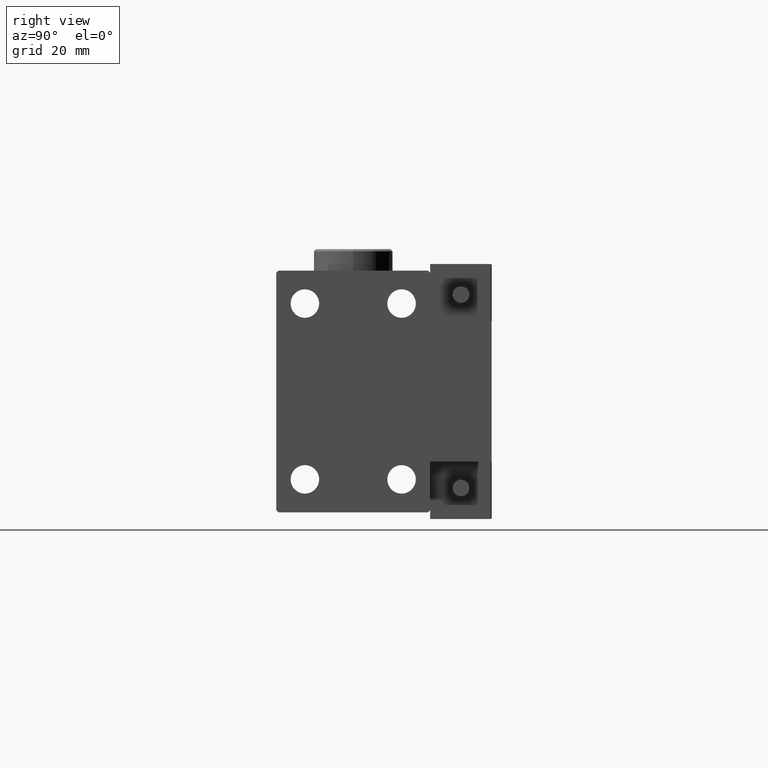
[diagram: clean part render]
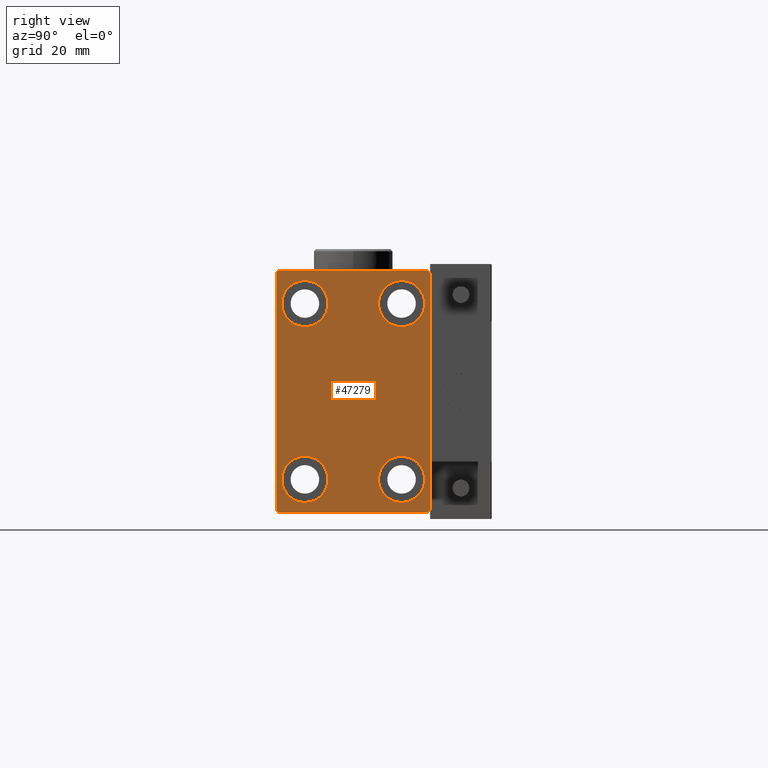
[diagram: same view with one face highlighted and labeled with its STEP entity id]
A machine part, right view. The second image highlights one B-rep face of the part: STEP entity #47279.
In plain terms, the highlighted planar face has unit normal (1, 0, 0).
Its self-contained STEP definition (entity closure, byte-faithful):
#1250 = VECTOR ( 'NONE', #51396, 1000.000000000000000 ) ;
#1400 = AXIS2_PLACEMENT_3D ( 'NONE', #21234, #33471, #48862 ) ;
#1563 = CARTESIAN_POINT ( 'NONE',  ( 76.00000000000000000, -17.50000000000000000, -27.50000000000000355 ) ) ;
#1680 = LINE ( 'NONE', #44450, #11740 ) ;
#1924 = ORIENTED_EDGE ( 'NONE', *, *, #20626, .T. ) ;
#2539 = LINE ( 'NONE', #10387, #17497 ) ;
#3242 = DIRECTION ( 'NONE',  ( 0.000000000000000000, 0.000000000000000000, -1.000000000000000000 ) ) ;
#3250 = DIRECTION ( 'NONE',  ( -0.000000000000000000, 0.7071067811865474617, 0.7071067811865474617 ) ) ;
#3505 = ORIENTED_EDGE ( 'NONE', *, *, #49502, .T. ) ;
#3665 = CARTESIAN_POINT ( 'NONE',  ( 76.00000000000000000, -22.25000000000024869, -22.24999999999963407 ) ) ;
#4926 = CARTESIAN_POINT ( 'NONE',  ( 76.00000000000000000, 11.00000000000000355, 25.25000000000000000 ) ) ;
#5257 = VERTEX_POINT ( 'NONE', #38629 ) ;
#6004 = CIRCLE ( 'NONE', #35160, 5.250000000000000888 ) ;
#6150 = DIRECTION ( 'NONE',  ( 0.000000000000000000, 0.000000000000000000, 1.000000000000000000 ) ) ;
#6251 = DIRECTION ( 'NONE',  ( 0.000000000000000000, 1.000000000000000000, 0.000000000000000000 ) ) ;
#6395 = VECTOR ( 'NONE', #41523, 1000.000000000000000 ) ;
#6415 = LINE ( 'NONE', #42380, #16752 ) ;
#6847 = DIRECTION ( 'NONE',  ( -1.000000000000000000, -0.000000000000000000, -0.000000000000000000 ) ) ;
#6942 = CIRCLE ( 'NONE', #13637, 5.250000000000000888 ) ;
#7661 = CARTESIAN_POINT ( 'NONE',  ( 76.00000000000000000, -11.00000000000000355, -14.75000000000000000 ) ) ;
#8195 = ORIENTED_EDGE ( 'NONE', *, *, #23574, .T. ) ;
#8262 = LINE ( 'NONE', #32274, #34756 ) ;
#8416 = DIRECTION ( 'NONE',  ( 0.000000000000000000, 0.000000000000000000, 1.000000000000000000 ) ) ;
#8664 = VERTEX_POINT ( 'NONE', #46753 ) ;
#8855 = CARTESIAN_POINT ( 'NONE',  ( 76.00000000000000000, -16.99999999999998579, 27.49999999999999645 ) ) ;
#8981 = EDGE_LOOP ( 'NONE', ( #34984, #8195 ) ) ;
#10333 = CARTESIAN_POINT ( 'NONE',  ( 76.00000000000000000, -11.00000000000000355, 20.00000000000000000 ) ) ;
#10387 = CARTESIAN_POINT ( 'NONE',  ( 76.00000000000000000, -17.50000000000000000, 27.49999999999999645 ) ) ;
#11507 = ORIENTED_EDGE ( 'NONE', *, *, #23798, .T. ) ;
#11740 = VECTOR ( 'NONE', #40537, 1000.000000000000114 ) ;
#12090 = VERTEX_POINT ( 'NONE', #36829 ) ;
#12483 = DIRECTION ( 'NONE',  ( -1.000000000000000000, -0.000000000000000000, -0.000000000000000000 ) ) ;
#12623 = CARTESIAN_POINT ( 'NONE',  ( 76.00000000000000000, -17.50000000000000000, 26.99999999999998224 ) ) ;
#13104 = VERTEX_POINT ( 'NONE', #50585 ) ;
#13517 = ORIENTED_EDGE ( 'NONE', *, *, #26972, .T. ) ;
#13637 = AXIS2_PLACEMENT_3D ( 'NONE', #35334, #34579, #46815 ) ;
#14091 = CIRCLE ( 'NONE', #21570, 5.250000000000000888 ) ;
#14275 = EDGE_CURVE ( 'NONE', #5257, #13104, #39394, .T. ) ;
#15307 = CARTESIAN_POINT ( 'NONE',  ( 76.00000000000000000, -11.00000000000000355, 25.25000000000000000 ) ) ;
#15760 = CARTESIAN_POINT ( 'NONE',  ( 76.00000000000000000, -11.00000000000000355, -20.00000000000000000 ) ) ;
#16367 = CIRCLE ( 'NONE', #1400, 5.250000000000000888 ) ;
#16432 = VERTEX_POINT ( 'NONE', #28534 ) ;
#16752 = VECTOR ( 'NONE', #3250, 1000.000000000000114 ) ;
#17043 = CARTESIAN_POINT ( 'NONE',  ( 76.00000000000000000, 17.50000000000000000, 27.50000000000000355 ) ) ;
#17497 = VECTOR ( 'NONE', #33861, 1000.000000000000000 ) ;
#18674 = CARTESIAN_POINT ( 'NONE',  ( 76.00000000000000000, 17.50000000000000711, -27.50000000000000355 ) ) ;
#18743 = EDGE_CURVE ( 'NONE', #40968, #35267, #25652, .T. ) ;
#18793 = CIRCLE ( 'NONE', #22113, 5.250000000000000888 ) ;
#18954 = AXIS2_PLACEMENT_3D ( 'NONE', #23256, #31068, #39128 ) ;
#19691 = AXIS2_PLACEMENT_3D ( 'NONE', #42561, #6847, #33996 ) ;
#20626 = EDGE_CURVE ( 'NONE', #51197, #44536, #35487, .T. ) ;
#20792 = CARTESIAN_POINT ( 'NONE',  ( 76.00000000000000000, 17.50000000000000000, 27.00000000000000355 ) ) ;
#21122 = EDGE_LOOP ( 'NONE', ( #50308, #41070 ) ) ;
#21234 = CARTESIAN_POINT ( 'NONE',  ( 76.00000000000000000, -11.00000000000000355, -20.00000000000000000 ) ) ;
#21288 = ORIENTED_EDGE ( 'NONE', *, *, #25800, .T. ) ;
#21410 = LINE ( 'NONE', #1563, #49715 ) ;
#21547 = CARTESIAN_POINT ( 'NONE',  ( 76.00000000000000000, 11.00000000000000355, -25.25000000000000000 ) ) ;
#21570 = AXIS2_PLACEMENT_3D ( 'NONE', #15760, #44141, #8416 ) ;
#22113 = AXIS2_PLACEMENT_3D ( 'NONE', #50611, #30292, #42278 ) ;
#22585 = DIRECTION ( 'NONE',  ( -1.000000000000000000, -0.000000000000000000, -0.000000000000000000 ) ) ;
#23256 = CARTESIAN_POINT ( 'NONE',  ( 76.00000000000000000, 11.00000000000000355, 20.00000000000000000 ) ) ;
#23574 = EDGE_CURVE ( 'NONE', #50089, #16432, #36389, .T. ) ;
#23798 = EDGE_CURVE ( 'NONE', #13104, #8664, #21410, .T. ) ;
#24200 = EDGE_CURVE ( 'NONE', #44483, #47687, #14091, .T. ) ;
#25533 = AXIS2_PLACEMENT_3D ( 'NONE', #43396, #46798, #3242 ) ;
#25652 = LINE ( 'NONE', #17043, #6395 ) ;
#25800 = EDGE_CURVE ( 'NONE', #46368, #5257, #2539, .T. ) ;
#26382 = CARTESIAN_POINT ( 'NONE',  ( 76.00000000000000000, 11.00000000000000355, -14.75000000000000000 ) ) ;
#26917 = EDGE_CURVE ( 'NONE', #44536, #51197, #31700, .T. ) ;
#26972 = EDGE_CURVE ( 'NONE', #8664, #12090, #6415, .T. ) ;
#26977 = EDGE_CURVE ( 'NONE', #12090, #28128, #27006, .T. ) ;
#27006 = LINE ( 'NONE', #18674, #44192 ) ;
#27579 = AXIS2_PLACEMENT_3D ( 'NONE', #10333, #22585, #6150 ) ;
#28122 = ORIENTED_EDGE ( 'NONE', *, *, #18743, .T. ) ;
#28128 = VERTEX_POINT ( 'NONE', #20792 ) ;
#28395 = DIRECTION ( 'NONE',  ( 0.000000000000000000, 0.000000000000000000, 1.000000000000000000 ) ) ;
#28534 = CARTESIAN_POINT ( 'NONE',  ( 76.00000000000000000, 11.00000000000000355, 14.75000000000000000 ) ) ;
#30152 = EDGE_CURVE ( 'NONE', #28128, #40968, #1680, .T. ) ;
#30292 = DIRECTION ( 'NONE',  ( -1.000000000000000000, -0.000000000000000000, -0.000000000000000000 ) ) ;
#30666 = ORIENTED_EDGE ( 'NONE', *, *, #26977, .T. ) ;
#31068 = DIRECTION ( 'NONE',  ( -1.000000000000000000, -0.000000000000000000, -0.000000000000000000 ) ) ;
#31700 = CIRCLE ( 'NONE', #27579, 5.250000000000000888 ) ;
#32187 = EDGE_LOOP ( 'NONE', ( #41517, #49043 ) ) ;
#32274 = CARTESIAN_POINT ( 'NONE',  ( 76.00000000000000000, -22.24999999999998579, 22.24999999999998579 ) ) ;
#32311 = CARTESIAN_POINT ( 'NONE',  ( 76.00000000000000000, 11.00000000000000355, 20.00000000000000000 ) ) ;
#33471 = DIRECTION ( 'NONE',  ( -1.000000000000000000, -0.000000000000000000, -0.000000000000000000 ) ) ;
#33561 = EDGE_CURVE ( 'NONE', #16432, #50089, #6004, .T. ) ;
#33794 = FACE_BOUND ( 'NONE', #32187, .T. ) ;
#33861 = DIRECTION ( 'NONE',  ( 0.000000000000000000, 0.000000000000000000, -1.000000000000000000 ) ) ;
#33996 = DIRECTION ( 'NONE',  ( 0.000000000000000000, 0.000000000000000000, 1.000000000000000000 ) ) ;
#34579 = DIRECTION ( 'NONE',  ( -1.000000000000000000, -0.000000000000000000, -0.000000000000000000 ) ) ;
#34756 = VECTOR ( 'NONE', #43732, 1000.000000000000114 ) ;
#34984 = ORIENTED_EDGE ( 'NONE', *, *, #33561, .T. ) ;
#35160 = AXIS2_PLACEMENT_3D ( 'NONE', #32311, #12483, #28395 ) ;
#35252 = CARTESIAN_POINT ( 'NONE',  ( 76.00000000000000000, -11.00000000000000355, -25.25000000000000000 ) ) ;
#35267 = VERTEX_POINT ( 'NONE', #8855 ) ;
#35334 = CARTESIAN_POINT ( 'NONE',  ( 76.00000000000000000, 11.00000000000000355, -20.00000000000000000 ) ) ;
#35487 = CIRCLE ( 'NONE', #19691, 5.250000000000000888 ) ;
#36389 = CIRCLE ( 'NONE', #18954, 5.250000000000000888 ) ;
#36620 = EDGE_CURVE ( 'NONE', #42537, #48888, #6942, .T. ) ;
#36790 = ORIENTED_EDGE ( 'NONE', *, *, #26917, .T. ) ;
#36829 = CARTESIAN_POINT ( 'NONE',  ( 76.00000000000000000, 17.50000000000000711, -27.00000000000000355 ) ) ;
#37709 = FACE_BOUND ( 'NONE', #38722, .T. ) ;
#37966 = FACE_BOUND ( 'NONE', #8981, .T. ) ;
#38621 = CARTESIAN_POINT ( 'NONE',  ( 76.00000000000000000, 17.00000000000000000, 27.50000000000000355 ) ) ;
#38629 = CARTESIAN_POINT ( 'NONE',  ( 76.00000000000000000, -17.50000000000000000, -27.00000000000000355 ) ) ;
#38722 = EDGE_LOOP ( 'NONE', ( #36790, #1924 ) ) ;
#39128 = DIRECTION ( 'NONE',  ( 0.000000000000000000, 0.000000000000000000, 1.000000000000000000 ) ) ;
#39394 = LINE ( 'NONE', #3665, #1250 ) ;
#40423 = ORIENTED_EDGE ( 'NONE', *, *, #14275, .T. ) ;
#40537 = DIRECTION ( 'NONE',  ( -0.000000000000000000, -0.7071067811865474617, 0.7071067811865474617 ) ) ;
#40966 = EDGE_CURVE ( 'NONE', #48888, #42537, #18793, .T. ) ;
#40968 = VERTEX_POINT ( 'NONE', #38621 ) ;
#41070 = ORIENTED_EDGE ( 'NONE', *, *, #40966, .T. ) ;
#41146 = DIRECTION ( 'NONE',  ( 0.000000000000000000, -1.261617073437677752E-16, 1.000000000000000000 ) ) ;
#41517 = ORIENTED_EDGE ( 'NONE', *, *, #47485, .T. ) ;
#41523 = DIRECTION ( 'NONE',  ( 0.000000000000000000, -1.000000000000000000, -1.982541115402065110E-16 ) ) ;
#41831 = EDGE_LOOP ( 'NONE', ( #28122, #3505, #21288, #40423, #11507, #13517, #30666, #51380 ) ) ;
#41857 = FACE_BOUND ( 'NONE', #21122, .T. ) ;
#42278 = DIRECTION ( 'NONE',  ( 0.000000000000000000, 0.000000000000000000, 1.000000000000000000 ) ) ;
#42380 = CARTESIAN_POINT ( 'NONE',  ( 76.00000000000000000, 22.25000000000000711, -22.25000000000000711 ) ) ;
#42537 = VERTEX_POINT ( 'NONE', #21547 ) ;
#42561 = CARTESIAN_POINT ( 'NONE',  ( 76.00000000000000000, -11.00000000000000355, 20.00000000000000000 ) ) ;
#43396 = CARTESIAN_POINT ( 'NONE',  ( 76.00000000000000000, 0.000000000000000000, 0.000000000000000000 ) ) ;
#43732 = DIRECTION ( 'NONE',  ( 0.000000000000000000, -0.7071067811865474617, -0.7071067811865474617 ) ) ;
#44141 = DIRECTION ( 'NONE',  ( -1.000000000000000000, -0.000000000000000000, -0.000000000000000000 ) ) ;
#44192 = VECTOR ( 'NONE', #41146, 1000.000000000000000 ) ;
#44450 = CARTESIAN_POINT ( 'NONE',  ( 76.00000000000000000, 22.25000000000000355, 22.25000000000000355 ) ) ;
#44483 = VERTEX_POINT ( 'NONE', #7661 ) ;
#44536 = VERTEX_POINT ( 'NONE', #51465 ) ;
#46368 = VERTEX_POINT ( 'NONE', #12623 ) ;
#46753 = CARTESIAN_POINT ( 'NONE',  ( 76.00000000000000000, 17.00000000000000711, -27.50000000000000355 ) ) ;
#46798 = DIRECTION ( 'NONE',  ( 1.000000000000000000, 0.000000000000000000, 0.000000000000000000 ) ) ;
#46815 = DIRECTION ( 'NONE',  ( 0.000000000000000000, 0.000000000000000000, 1.000000000000000000 ) ) ;
#47057 = PLANE ( 'NONE',  #25533 ) ;
#47279 = ADVANCED_FACE ( 'NONE', ( #41857, #37709, #37966, #33794, #49688 ), #47057, .T. ) ;
#47485 = EDGE_CURVE ( 'NONE', #47687, #44483, #16367, .T. ) ;
#47687 = VERTEX_POINT ( 'NONE', #35252 ) ;
#48862 = DIRECTION ( 'NONE',  ( 0.000000000000000000, 0.000000000000000000, 1.000000000000000000 ) ) ;
#48888 = VERTEX_POINT ( 'NONE', #26382 ) ;
#49043 = ORIENTED_EDGE ( 'NONE', *, *, #24200, .T. ) ;
#49502 = EDGE_CURVE ( 'NONE', #35267, #46368, #8262, .T. ) ;
#49688 = FACE_OUTER_BOUND ( 'NONE', #41831, .T. ) ;
#49715 = VECTOR ( 'NONE', #6251, 1000.000000000000000 ) ;
#50089 = VERTEX_POINT ( 'NONE', #4926 ) ;
#50308 = ORIENTED_EDGE ( 'NONE', *, *, #36620, .T. ) ;
#50585 = CARTESIAN_POINT ( 'NONE',  ( 76.00000000000000000, -17.00000000000001421, -27.50000000000000355 ) ) ;
#50611 = CARTESIAN_POINT ( 'NONE',  ( 76.00000000000000000, 11.00000000000000355, -20.00000000000000000 ) ) ;
#51197 = VERTEX_POINT ( 'NONE', #15307 ) ;
#51380 = ORIENTED_EDGE ( 'NONE', *, *, #30152, .T. ) ;
#51396 = DIRECTION ( 'NONE',  ( -0.000000000000000000, 0.7071067811865378028, -0.7071067811865573427 ) ) ;
#51465 = CARTESIAN_POINT ( 'NONE',  ( 76.00000000000000000, -11.00000000000000355, 14.75000000000000000 ) ) ;